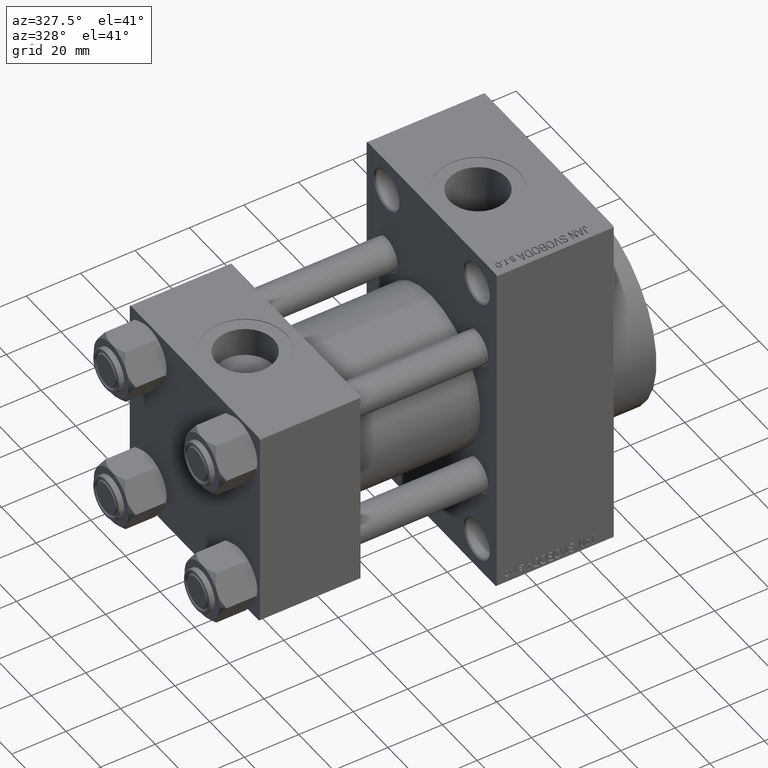
[diagram: clean part render]
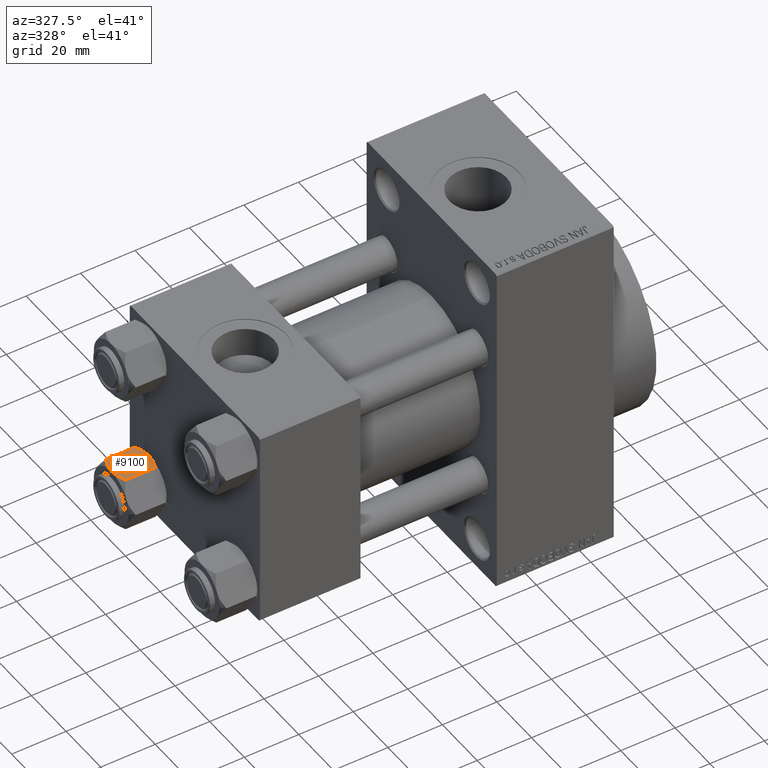
[diagram: same view with one face highlighted and labeled with its STEP entity id]
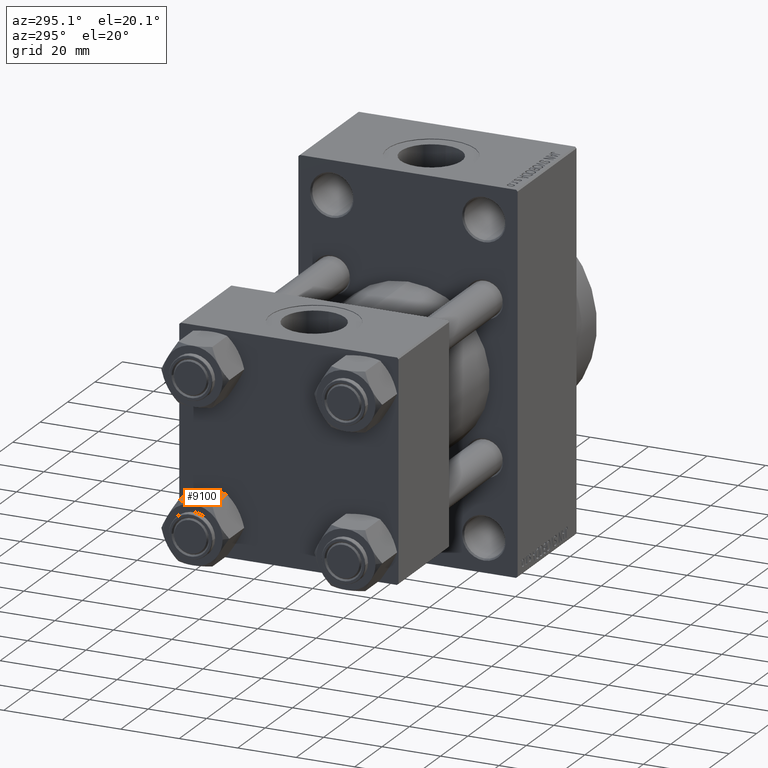
[diagram: same view with one face highlighted and labeled with its STEP entity id]
A machine part, auxiliary view. The second image highlights one B-rep face of the part: STEP entity #9100.
A second angle (auxiliary view) of the same face is appended — the face is thin or edge-on in the first view.
In plain terms, the highlighted planar face has unit normal (0, 0, -1).
Its self-contained STEP definition (entity closure, byte-faithful):
#605 = CARTESIAN_POINT ( 'NONE',  ( 5.359707691559672860, 10.06321519197517844, -1.331638653804651629 ) ) ;
#1912 = ORIENTED_EDGE ( 'NONE', *, *, #38264, .F. ) ;
#2415 = CARTESIAN_POINT ( 'NONE',  ( 1.018274738099085530, 10.06321519197517844, -13.95177257919929126 ) ) ;
#2559 = CARTESIAN_POINT ( 'NONE',  ( -4.908816193182376608, 10.06321519197518199, -1.106192904616006167 ) ) ;
#2760 = VERTEX_POINT ( 'NONE', #19002 ) ;
#3351 = CARTESIAN_POINT ( 'NONE',  ( 4.908816193182381937, 10.06321519197518022, -12.89380709538399472 ) ) ;
#3423 = CARTESIAN_POINT ( 'NONE',  ( -3.958929922320415962, 10.06321519197517844, -13.25786014976460159 ) ) ;
#4419 = CARTESIAN_POINT ( 'NONE',  ( 3.958929922320420403, 10.06321519197517844, -0.7421398502353995230 ) ) ;
#5610 = VERTEX_POINT ( 'NONE', #28464 ) ;
#6145 = CARTESIAN_POINT ( 'NONE',  ( -1.018274738099083310, 10.06321519197517667, -0.04822742080070820114 ) ) ;
#6956 = CARTESIAN_POINT ( 'NONE',  ( 3.474497094393252272, 10.06321519197518022, -0.5726960901042741359 ) ) ;
#9100 = ADVANCED_FACE ( 'NONE', ( #39452 ), #24195, .F. ) ;
#9351 = CARTESIAN_POINT ( 'NONE',  ( 5.810000000000000497, 10.06321519197518022, -14.00000000000000000 ) ) ;
#9857 = DIRECTION ( 'NONE',  ( 0.000000000000000000, -1.000000000000000000, 0.000000000000000000 ) ) ;
#10131 = CARTESIAN_POINT ( 'NONE',  ( 0.000000000000000000, 10.06321519197518022, -14.00000000000000000 ) ) ;
#10596 = CARTESIAN_POINT ( 'NONE',  ( -5.359707691559671083, 10.06321519197517844, -12.66836134619534704 ) ) ;
#10859 = VERTEX_POINT ( 'NONE', #15911 ) ;
#12269 = CARTESIAN_POINT ( 'NONE',  ( 0.000000000000000000, 10.06321519197518022, -14.00000000000000000 ) ) ;
#13778 = CARTESIAN_POINT ( 'NONE',  ( -3.960942496020600778, 10.06321519197518199, -0.7115728323610410744 ) ) ;
#13913 = ORIENTED_EDGE ( 'NONE', *, *, #34157, .T. ) ;
#14112 = CARTESIAN_POINT ( 'NONE',  ( 1.020132157807626561, 10.06321519197517844, 1.504330514323637599E-15 ) ) ;
#15911 = CARTESIAN_POINT ( 'NONE',  ( -5.809999999999997833, 10.06321519197518022, -12.44321519197518633 ) ) ;
#17447 = CARTESIAN_POINT ( 'NONE',  ( 0.5112014849988890663, 10.06321519197518022, -13.99019602057108713 ) ) ;
#19002 = CARTESIAN_POINT ( 'NONE',  ( -5.809999999999997833, 10.06321519197518022, -1.556784808024814115 ) ) ;
#20608 = DIRECTION ( 'NONE',  ( 0.000000000000000000, -0.000000000000000000, -1.000000000000000000 ) ) ;
#20723 = CARTESIAN_POINT ( 'NONE',  ( -1.772424303831120929, 10.06321519197518022, -0.1338870921722370433 ) ) ;
#20852 = VECTOR ( 'NONE', #46604, 1000.000000000000000 ) ;
#21088 = ORIENTED_EDGE ( 'NONE', *, *, #40223, .F. ) ;
#21354 = CARTESIAN_POINT ( 'NONE',  ( -3.474497094393251828, 10.06321519197518022, -13.42730390989572520 ) ) ;
#21522 = CARTESIAN_POINT ( 'NONE',  ( 2.013954290287966575, 10.06321519197518022, -0.1570111679759973733 ) ) ;
#21590 = CARTESIAN_POINT ( 'NONE',  ( -4.900668367960791194, 10.06321519197518199, -12.87844331629023387 ) ) ;
#21826 = EDGE_CURVE ( 'NONE', #10859, #34906, #24268, .T. ) ;
#24195 = PLANE ( 'NONE',  #46568 ) ;
#24268 = B_SPLINE_CURVE_WITH_KNOTS ( 'NONE', 3,
 ( #25411, #10596, #21590, #3423, #21354, #39261, #39490, #10131 ),
 .UNSPECIFIED., .F., .F.,
 ( 4, 2, 2, 4 ),
 ( 0.01467889604968878464, 0.01619420351931634416, 0.01770951098894390022, 0.02074012592819901579 ),
 .UNSPECIFIED. ) ;
#24401 = CARTESIAN_POINT ( 'NONE',  ( 3.960942496020604331, 10.06321519197518022, -13.28842716763896092 ) ) ;
#24867 = CARTESIAN_POINT ( 'NONE',  ( 0.2543996698847490467, 10.06321519197518199, -14.00000000000000000 ) ) ;
#24898 = CARTESIAN_POINT ( 'NONE',  ( -5.809999999999997833, 10.06321519197518022, -14.00000000000000000 ) ) ;
#25101 = CARTESIAN_POINT ( 'NONE',  ( 2.508586450168039939, 10.06321519197518022, -13.70242473679676998 ) ) ;
#25411 = CARTESIAN_POINT ( 'NONE',  ( -5.809999999999997833, 10.06321519197518022, -12.44321519197518633 ) ) ;
#27032 = DIRECTION ( 'NONE',  ( -0.000000000000000000, -0.000000000000000000, 1.000000000000000000 ) ) ;
#27213 = B_SPLINE_CURVE_WITH_KNOTS ( 'NONE', 3,
 ( #33338, #605, #40732, #4419, #6956, #21522, #14112, #42997 ),
 .UNSPECIFIED., .F., .F.,
 ( 4, 2, 2, 4 ),
 ( 0.01467889604968878811, 0.01619420351931634416, 0.01770951098894390369, 0.02074012592819901579 ),
 .UNSPECIFIED. ) ;
#27619 = ORIENTED_EDGE ( 'NONE', *, *, #21826, .F. ) ;
#27972 = EDGE_LOOP ( 'NONE', ( #27619, #13913, #21088, #30648, #33266, #1912 ) ) ;
#28203 = CARTESIAN_POINT ( 'NONE',  ( 0.000000000000000000, 10.06321519197518022, -14.00000000000000000 ) ) ;
#28464 = CARTESIAN_POINT ( 'NONE',  ( 0.000000000000000000, 10.06321519197518022, 0.000000000000000000 ) ) ;
#28476 = CARTESIAN_POINT ( 'NONE',  ( -5.809999999999997833, 10.06321519197518022, -14.00000000000000000 ) ) ;
#28590 = CARTESIAN_POINT ( 'NONE',  ( -0.2543996698847471039, 10.06321519197517844, 1.789568859311522647E-15 ) ) ;
#28677 = CARTESIAN_POINT ( 'NONE',  ( 1.772424303831123815, 10.06321519197518199, -13.86611290782776074 ) ) ;
#28944 = LINE ( 'NONE', #24898, #20852 ) ;
#30648 = ORIENTED_EDGE ( 'NONE', *, *, #42333, .F. ) ;
#32031 = CARTESIAN_POINT ( 'NONE',  ( 5.810000000000000497, 10.06321519197518022, -12.44321519197518455 ) ) ;
#32299 = VECTOR ( 'NONE', #27032, 1000.000000000000000 ) ;
#32478 = B_SPLINE_CURVE_WITH_KNOTS ( 'NONE', 3,
 ( #46713, #28590, #46478, #6145, #20723, #35292, #13778, #2559, #42665 ),
 .UNSPECIFIED., .F., .F.,
 ( 4, 2, 1, 2, 4 ),
 ( 0.02074012592819901579, 0.02149589804477577970, 0.02225167016135254361, 0.02376321439450607489, 0.02678630286081313400 ),
 .UNSPECIFIED. ) ;
#33266 = ORIENTED_EDGE ( 'NONE', *, *, #38083, .F. ) ;
#33338 = CARTESIAN_POINT ( 'NONE',  ( 5.810000000000000497, 10.06321519197518022, -1.556784808024815892 ) ) ;
#34157 = EDGE_CURVE ( 'NONE', #10859, #2760, #28944, .T. ) ;
#34906 = VERTEX_POINT ( 'NONE', #12269 ) ;
#35292 = CARTESIAN_POINT ( 'NONE',  ( -2.508586450168038162, 10.06321519197518199, -0.2975752632032285794 ) ) ;
#36093 = VERTEX_POINT ( 'NONE', #36740 ) ;
#36740 = CARTESIAN_POINT ( 'NONE',  ( 5.810000000000000497, 10.06321519197518022, -1.556784808024815892 ) ) ;
#37646 = VERTEX_POINT ( 'NONE', #32031 ) ;
#38083 = EDGE_CURVE ( 'NONE', #37646, #36093, #45395, .T. ) ;
#38264 = EDGE_CURVE ( 'NONE', #34906, #37646, #39946, .T. ) ;
#39261 = CARTESIAN_POINT ( 'NONE',  ( -2.013954290287964355, 10.06321519197518022, -13.84298883202399999 ) ) ;
#39452 = FACE_OUTER_BOUND ( 'NONE', #27972, .T. ) ;
#39490 = CARTESIAN_POINT ( 'NONE',  ( -1.020132157807624340, 10.06321519197517844, -14.00000000000000000 ) ) ;
#39946 = B_SPLINE_CURVE_WITH_KNOTS ( 'NONE', 3,
 ( #28203, #24867, #17447, #2415, #28677, #25101, #24401, #3351, #42757 ),
 .UNSPECIFIED., .F., .F.,
 ( 4, 2, 1, 2, 4 ),
 ( 0.02074012592819901579, 0.02149589804477577970, 0.02225167016135254361, 0.02376321439450607489, 0.02678630286081313400 ),
 .UNSPECIFIED. ) ;
#40223 = EDGE_CURVE ( 'NONE', #5610, #2760, #32478, .T. ) ;
#40732 = CARTESIAN_POINT ( 'NONE',  ( 4.900668367960795635, 10.06321519197518199, -1.121556683709773239 ) ) ;
#42333 = EDGE_CURVE ( 'NONE', #36093, #5610, #27213, .T. ) ;
#42665 = CARTESIAN_POINT ( 'NONE',  ( -5.809999999999997833, 10.06321519197518022, -1.556784808024814115 ) ) ;
#42757 = CARTESIAN_POINT ( 'NONE',  ( 5.810000000000000497, 10.06321519197518022, -12.44321519197518455 ) ) ;
#42997 = CARTESIAN_POINT ( 'NONE',  ( 0.000000000000000000, 10.06321519197518022, 0.000000000000000000 ) ) ;
#45395 = LINE ( 'NONE', #9351, #32299 ) ;
#46478 = CARTESIAN_POINT ( 'NONE',  ( -0.5112014849988875120, 10.06321519197518199, -0.009803979428912690947 ) ) ;
#46568 = AXIS2_PLACEMENT_3D ( 'NONE', #28476, #9857, #20608 ) ;
#46604 = DIRECTION ( 'NONE',  ( -0.000000000000000000, -0.000000000000000000, 1.000000000000000000 ) ) ;
#46713 = CARTESIAN_POINT ( 'NONE',  ( 0.000000000000000000, 10.06321519197518022, 0.000000000000000000 ) ) ;